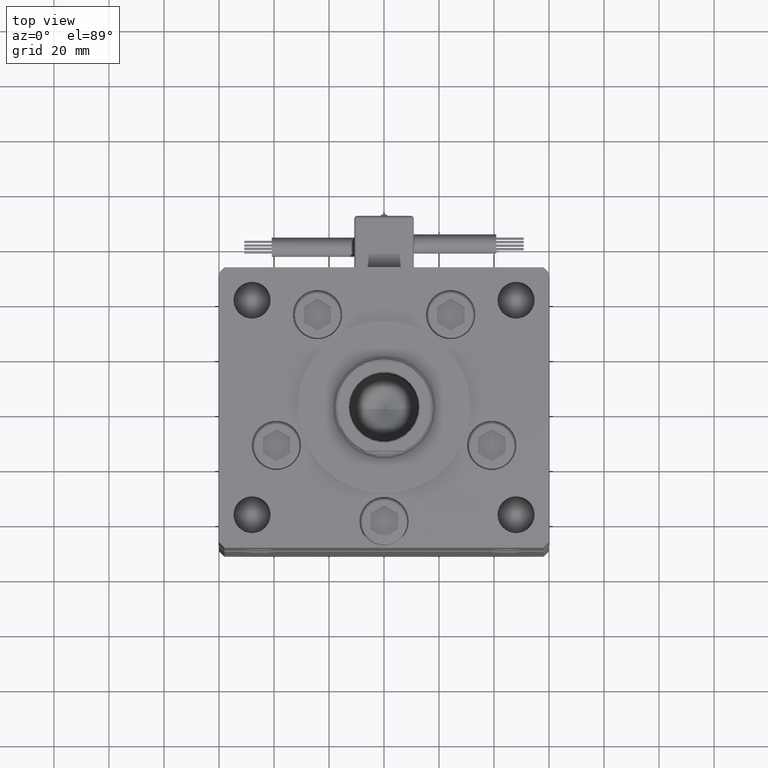
[diagram: clean part render]
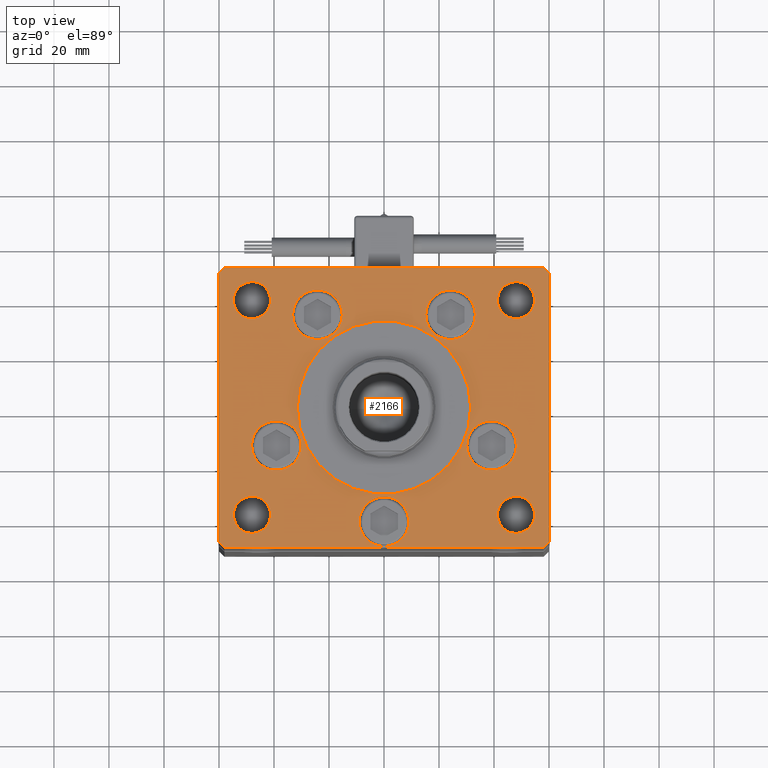
[diagram: same view with one face highlighted and labeled with its STEP entity id]
A machine part, top view. The second image highlights one B-rep face of the part: STEP entity #2166.
In plain terms, the highlighted planar face has unit normal (0, 0, 1).
Its self-contained STEP definition (entity closure, byte-faithful):
#380 = ORIENTED_EDGE ( 'NONE', *, *, #10781, .F. ) ;
#771 = DIRECTION ( 'NONE',  ( 1.000000000000000000, 0.000000000000000000, 0.000000000000000000 ) ) ;
#999 = CARTESIAN_POINT ( 'NONE',  ( 60.00000000000001421, 49.00000000000002842, 0.000000000000000000 ) ) ;
#1117 = EDGE_CURVE ( 'NONE', #8129, #43967, #13615, .T. ) ;
#1232 = CARTESIAN_POINT ( 'NONE',  ( 0.000000000000000000, 0.000000000000000000, 0.000000000000000000 ) ) ;
#1372 = LINE ( 'NONE', #15332, #27720 ) ;
#1507 = FACE_BOUND ( 'NONE', #9534, .T. ) ;
#1726 = DIRECTION ( 'NONE',  ( 0.000000000000000000, -1.000000000000000000, 0.000000000000000000 ) ) ;
#1865 = CARTESIAN_POINT ( 'NONE',  ( -48.00000000000000000, -39.00000000000001421, 0.000000000000000000 ) ) ;
#1868 = ORIENTED_EDGE ( 'NONE', *, *, #14160, .F. ) ;
#2023 = EDGE_CURVE ( 'NONE', #27829, #37886, #40986, .T. ) ;
#2048 = CIRCLE ( 'NONE', #9320, 31.50000000000000000 ) ;
#2114 = CARTESIAN_POINT ( 'NONE',  ( -58.00000000000000711, -51.00000000000002842, 0.000000000000000000 ) ) ;
#2166 = ADVANCED_FACE ( 'NONE', ( #15467, #32877, #14332, #2364, #10909, #1507, #23475, #22912, #23754, #11191, #28610 ), #32592, .T. ) ;
#2178 = CARTESIAN_POINT ( 'NONE',  ( 48.00000000000000000, 39.00000000000000000, 0.000000000000000000 ) ) ;
#2188 = CARTESIAN_POINT ( 'NONE',  ( 9.000000000000000000, -41.50000000000000000, 0.000000000000000000 ) ) ;
#2364 = FACE_BOUND ( 'NONE', #47450, .T. ) ;
#2489 = DIRECTION ( 'NONE',  ( 0.000000000000000000, 0.000000000000000000, 1.000000000000000000 ) ) ;
#2568 = VERTEX_POINT ( 'NONE', #10145 ) ;
#2948 = EDGE_CURVE ( 'NONE', #54557, #39420, #15516, .T. ) ;
#3286 = DIRECTION ( 'NONE',  ( -0.000000000000000000, -0.000000000000000000, -1.000000000000000000 ) ) ;
#4009 = ORIENTED_EDGE ( 'NONE', *, *, #32674, .F. ) ;
#4519 = DIRECTION ( 'NONE',  ( 0.000000000000000000, 0.000000000000000000, 1.000000000000000000 ) ) ;
#4549 = ORIENTED_EDGE ( 'NONE', *, *, #11022, .T. ) ;
#4842 = CARTESIAN_POINT ( 'NONE',  ( 48.00000000000000000, 39.00000000000000000, 0.000000000000000000 ) ) ;
#5028 = DIRECTION ( 'NONE',  ( 1.000000000000000000, 0.000000000000000000, 0.000000000000000000 ) ) ;
#5210 = VERTEX_POINT ( 'NONE', #27964 ) ;
#5228 = EDGE_CURVE ( 'NONE', #2568, #5210, #23404, .T. ) ;
#5799 = VECTOR ( 'NONE', #9552, 1000.000000000000000 ) ;
#6368 = ORIENTED_EDGE ( 'NONE', *, *, #13982, .F. ) ;
#6607 = AXIS2_PLACEMENT_3D ( 'NONE', #18485, #35583, #23046 ) ;
#6787 = DIRECTION ( 'NONE',  ( 1.000000000000000000, 0.000000000000000000, 0.000000000000000000 ) ) ;
#6920 = DIRECTION ( 'NONE',  ( 0.000000000000000000, 1.000000000000000000, 0.000000000000000000 ) ) ;
#7403 = ORIENTED_EDGE ( 'NONE', *, *, #28221, .F. ) ;
#7424 = VERTEX_POINT ( 'NONE', #38709 ) ;
#7764 = CARTESIAN_POINT ( 'NONE',  ( -9.000000000000000000, -41.50000000000000000, 0.000000000000000000 ) ) ;
#7800 = CARTESIAN_POINT ( 'NONE',  ( 31.50000000000000000, -3.081256486593065689E-15, 0.000000000000000000 ) ) ;
#8129 = VERTEX_POINT ( 'NONE', #31784 ) ;
#8155 = CARTESIAN_POINT ( 'NONE',  ( 39.12657522565563539, -13.83333333333332860, 0.000000000000000000 ) ) ;
#8533 = EDGE_CURVE ( 'NONE', #51269, #43485, #30513, .T. ) ;
#8646 = EDGE_LOOP ( 'NONE', ( #52662, #32396, #10801, #17482, #4549, #18138, #49569, #12942 ) ) ;
#8982 = EDGE_CURVE ( 'NONE', #32007, #54642, #2048, .T. ) ;
#9076 = CARTESIAN_POINT ( 'NONE',  ( 41.25000000000000000, 39.00000000000000000, 0.000000000000000000 ) ) ;
#9320 = AXIS2_PLACEMENT_3D ( 'NONE', #39828, #36613, #771 ) ;
#9534 = EDGE_LOOP ( 'NONE', ( #7403, #54099 ) ) ;
#9552 = DIRECTION ( 'NONE',  ( -0.7071067811865536790, 0.7071067811865414665, 0.000000000000000000 ) ) ;
#9639 = DIRECTION ( 'NONE',  ( 1.000000000000000000, 0.000000000000000000, 0.000000000000000000 ) ) ;
#10145 = CARTESIAN_POINT ( 'NONE',  ( -60.00000000000000000, 49.00000000000000000, 0.000000000000000000 ) ) ;
#10351 = AXIS2_PLACEMENT_3D ( 'NONE', #24157, #2489, #12149 ) ;
#10715 = VERTEX_POINT ( 'NONE', #11030 ) ;
#10781 = EDGE_CURVE ( 'NONE', #54642, #32007, #34928, .T. ) ;
#10801 = ORIENTED_EDGE ( 'NONE', *, *, #8533, .T. ) ;
#10815 = CIRCLE ( 'NONE', #56313, 6.749999999999999112 ) ;
#10893 = CARTESIAN_POINT ( 'NONE',  ( -48.00000000000000000, 39.00000000000000711, 0.000000000000000000 ) ) ;
#10909 = FACE_BOUND ( 'NONE', #48776, .T. ) ;
#11015 = CARTESIAN_POINT ( 'NONE',  ( 54.75000000000000000, 39.00000000000000000, 0.000000000000000000 ) ) ;
#11022 = EDGE_CURVE ( 'NONE', #19050, #37026, #18966, .T. ) ;
#11030 = CARTESIAN_POINT ( 'NONE',  ( -57.99999999999998579, 50.99999999999997868, 0.000000000000000000 ) ) ;
#11191 = FACE_OUTER_BOUND ( 'NONE', #8646, .T. ) ;
#11289 = DIRECTION ( 'NONE',  ( 0.000000000000000000, 0.000000000000000000, 1.000000000000000000 ) ) ;
#11837 = CARTESIAN_POINT ( 'NONE',  ( -48.00000000000000000, 39.00000000000000711, 0.000000000000000000 ) ) ;
#11932 = DIRECTION ( 'NONE',  ( 0.000000000000000000, 0.000000000000000000, 1.000000000000000000 ) ) ;
#12037 = VECTOR ( 'NONE', #6920, 1000.000000000000000 ) ;
#12149 = DIRECTION ( 'NONE',  ( 1.000000000000000000, 0.000000000000000000, 0.000000000000000000 ) ) ;
#12504 = EDGE_CURVE ( 'NONE', #21456, #50301, #38594, .T. ) ;
#12674 = VERTEX_POINT ( 'NONE', #42060 ) ;
#12942 = ORIENTED_EDGE ( 'NONE', *, *, #5228, .T. ) ;
#13615 = CIRCLE ( 'NONE', #20941, 9.000000000000001776 ) ;
#13982 = EDGE_CURVE ( 'NONE', #7424, #17263, #31227, .T. ) ;
#14018 = AXIS2_PLACEMENT_3D ( 'NONE', #15280, #46067, #50331 ) ;
#14160 = EDGE_CURVE ( 'NONE', #43967, #8129, #45820, .T. ) ;
#14252 = CIRCLE ( 'NONE', #42493, 9.000000000000000000 ) ;
#14332 = FACE_BOUND ( 'NONE', #32937, .T. ) ;
#14517 = CARTESIAN_POINT ( 'NONE',  ( -54.75000000000000000, 39.00000000000000711, 0.000000000000000000 ) ) ;
#15280 = CARTESIAN_POINT ( 'NONE',  ( 0.000000000000000000, -41.50000000000000000, 0.000000000000000000 ) ) ;
#15332 = CARTESIAN_POINT ( 'NONE',  ( 58.00000000000000000, 51.00000000000000711, 0.000000000000000000 ) ) ;
#15467 = FACE_BOUND ( 'NONE', #42854, .T. ) ;
#15516 = CIRCLE ( 'NONE', #47366, 6.749999999999999112 ) ;
#15766 = ORIENTED_EDGE ( 'NONE', *, *, #1117, .F. ) ;
#16415 = DIRECTION ( 'NONE',  ( 1.000000000000000000, 0.000000000000000000, 0.000000000000000000 ) ) ;
#16881 = AXIS2_PLACEMENT_3D ( 'NONE', #36648, #32389, #54319 ) ;
#17225 = EDGE_CURVE ( 'NONE', #39420, #54557, #41350, .T. ) ;
#17263 = VERTEX_POINT ( 'NONE', #25690 ) ;
#17330 = AXIS2_PLACEMENT_3D ( 'NONE', #1865, #19256, #49747 ) ;
#17335 = ORIENTED_EDGE ( 'NONE', *, *, #38188, .F. ) ;
#17482 = ORIENTED_EDGE ( 'NONE', *, *, #37767, .T. ) ;
#17731 = VECTOR ( 'NONE', #37299, 1000.000000000000114 ) ;
#18138 = ORIENTED_EDGE ( 'NONE', *, *, #46810, .T. ) ;
#18485 = CARTESIAN_POINT ( 'NONE',  ( 0.000000000000000000, -41.50000000000000000, 0.000000000000000000 ) ) ;
#18629 = DIRECTION ( 'NONE',  ( 1.000000000000000000, 0.000000000000000000, 0.000000000000000000 ) ) ;
#18911 = DIRECTION ( 'NONE',  ( -0.000000000000000000, 0.000000000000000000, 1.000000000000000000 ) ) ;
#18966 = LINE ( 'NONE', #999, #5799 ) ;
#19050 = VERTEX_POINT ( 'NONE', #19307 ) ;
#19107 = VERTEX_POINT ( 'NONE', #33005 ) ;
#19256 = DIRECTION ( 'NONE',  ( 0.000000000000000000, 0.000000000000000000, 1.000000000000000000 ) ) ;
#19307 = CARTESIAN_POINT ( 'NONE',  ( 60.00000000000001421, 49.00000000000002842, 0.000000000000000000 ) ) ;
#19614 = DIRECTION ( 'NONE',  ( -1.000000000000000000, -2.392722035830078972E-16, 0.000000000000000000 ) ) ;
#19743 = AXIS2_PLACEMENT_3D ( 'NONE', #28466, #45827, #6787 ) ;
#19849 = VERTEX_POINT ( 'NONE', #9076 ) ;
#20029 = DIRECTION ( 'NONE',  ( -1.000000000000000000, 0.000000000000000000, 0.000000000000000000 ) ) ;
#20410 = CIRCLE ( 'NONE', #14018, 9.000000000000000000 ) ;
#20518 = CARTESIAN_POINT ( 'NONE',  ( -31.50000000000000000, -6.938893903907228378E-15, 0.000000000000000000 ) ) ;
#20873 = EDGE_CURVE ( 'NONE', #56268, #35382, #25118, .T. ) ;
#20941 = AXIS2_PLACEMENT_3D ( 'NONE', #38088, #55482, #16415 ) ;
#21238 = CARTESIAN_POINT ( 'NONE',  ( -41.25000000000000000, 39.00000000000000711, 0.000000000000000000 ) ) ;
#21396 = CARTESIAN_POINT ( 'NONE',  ( 54.75000000000000000, -39.00000000000001421, 0.000000000000000000 ) ) ;
#21456 = VERTEX_POINT ( 'NONE', #7764 ) ;
#22262 = CARTESIAN_POINT ( 'NONE',  ( -54.75000000000000000, -39.00000000000001421, 0.000000000000000000 ) ) ;
#22585 = EDGE_CURVE ( 'NONE', #12674, #19107, #55230, .T. ) ;
#22734 = LINE ( 'NONE', #39831, #24755 ) ;
#22887 = VECTOR ( 'NONE', #1726, 1000.000000000000000 ) ;
#22912 = FACE_BOUND ( 'NONE', #41099, .T. ) ;
#23046 = DIRECTION ( 'NONE',  ( 1.000000000000000000, 0.000000000000000000, 0.000000000000000000 ) ) ;
#23404 = LINE ( 'NONE', #40782, #22887 ) ;
#23475 = FACE_BOUND ( 'NONE', #33754, .T. ) ;
#23754 = FACE_BOUND ( 'NONE', #53857, .T. ) ;
#23907 = CARTESIAN_POINT ( 'NONE',  ( -60.00000000000000000, -49.00000000000004263, 0.000000000000000000 ) ) ;
#23988 = AXIS2_PLACEMENT_3D ( 'NONE', #29231, #47137, #54858 ) ;
#24099 = CIRCLE ( 'NONE', #30476, 9.000000000000001776 ) ;
#24157 = CARTESIAN_POINT ( 'NONE',  ( 0.000000000000000000, -6.938893903907228378E-15, 0.000000000000000000 ) ) ;
#24249 = CARTESIAN_POINT ( 'NONE',  ( 58.00000000000001421, -50.99999999999992184, 0.000000000000000000 ) ) ;
#24755 = VECTOR ( 'NONE', #48098, 1000.000000000000000 ) ;
#25118 = CIRCLE ( 'NONE', #16881, 6.749999999999999112 ) ;
#25384 = DIRECTION ( 'NONE',  ( 0.000000000000000000, 0.000000000000000000, 1.000000000000000000 ) ) ;
#25690 = CARTESIAN_POINT ( 'NONE',  ( 30.12657522565563539, -13.83333333333332682, 0.000000000000000000 ) ) ;
#25897 = DIRECTION ( 'NONE',  ( -1.000000000000000000, 0.000000000000000000, 0.000000000000000000 ) ) ;
#26079 = ORIENTED_EDGE ( 'NONE', *, *, #34396, .F. ) ;
#26144 = DIRECTION ( 'NONE',  ( 0.000000000000000000, 0.000000000000000000, 1.000000000000000000 ) ) ;
#26453 = DIRECTION ( 'NONE',  ( -0.000000000000000000, -0.000000000000000000, -1.000000000000000000 ) ) ;
#26515 = ORIENTED_EDGE ( 'NONE', *, *, #17225, .T. ) ;
#27139 = EDGE_CURVE ( 'NONE', #19107, #12674, #14252, .T. ) ;
#27720 = VECTOR ( 'NONE', #19614, 1000.000000000000000 ) ;
#27829 = VERTEX_POINT ( 'NONE', #49895 ) ;
#27964 = CARTESIAN_POINT ( 'NONE',  ( -60.00000000000000000, -49.00000000000004263, 0.000000000000000000 ) ) ;
#28221 = EDGE_CURVE ( 'NONE', #44039, #37463, #44308, .T. ) ;
#28317 = CARTESIAN_POINT ( 'NONE',  ( 60.00000000000001421, -48.99999999999992895, 0.000000000000000000 ) ) ;
#28466 = CARTESIAN_POINT ( 'NONE',  ( -39.12657522565563539, -13.83333333333332860, 0.000000000000000000 ) ) ;
#28610 = FACE_BOUND ( 'NONE', #51339, .T. ) ;
#29231 = CARTESIAN_POINT ( 'NONE',  ( 24.19288941894913592, 33.71874999999998579, 0.000000000000000000 ) ) ;
#29906 = CARTESIAN_POINT ( 'NONE',  ( -48.00000000000000000, -39.00000000000001421, 0.000000000000000000 ) ) ;
#29971 = CARTESIAN_POINT ( 'NONE',  ( 58.00000000000001421, -50.99999999999992184, 0.000000000000000000 ) ) ;
#30476 = AXIS2_PLACEMENT_3D ( 'NONE', #51788, #26144, #5028 ) ;
#30513 = LINE ( 'NONE', #29971, #52975 ) ;
#31227 = CIRCLE ( 'NONE', #38502, 9.000000000000001776 ) ;
#31430 = CARTESIAN_POINT ( 'NONE',  ( -57.99999999999998579, 50.99999999999997868, 0.000000000000000000 ) ) ;
#31784 = CARTESIAN_POINT ( 'NONE',  ( 15.19288941894913236, 33.71874999999998579, 0.000000000000000000 ) ) ;
#32007 = VERTEX_POINT ( 'NONE', #7800 ) ;
#32288 = ORIENTED_EDGE ( 'NONE', *, *, #27139, .F. ) ;
#32363 = ORIENTED_EDGE ( 'NONE', *, *, #8982, .F. ) ;
#32389 = DIRECTION ( 'NONE',  ( -0.000000000000000000, -0.000000000000000000, -1.000000000000000000 ) ) ;
#32396 = ORIENTED_EDGE ( 'NONE', *, *, #35881, .T. ) ;
#32592 = PLANE ( 'NONE',  #32835 ) ;
#32674 = EDGE_CURVE ( 'NONE', #19849, #35984, #10815, .T. ) ;
#32822 = ORIENTED_EDGE ( 'NONE', *, *, #22585, .F. ) ;
#32835 = AXIS2_PLACEMENT_3D ( 'NONE', #1232, #18911, #18629 ) ;
#32877 = FACE_BOUND ( 'NONE', #46288, .T. ) ;
#32937 = EDGE_LOOP ( 'NONE', ( #1868, #15766 ) ) ;
#33001 = EDGE_CURVE ( 'NONE', #10715, #2568, #39972, .T. ) ;
#33005 = CARTESIAN_POINT ( 'NONE',  ( -33.19288941894913592, 33.71874999999998579, 0.000000000000000000 ) ) ;
#33515 = CARTESIAN_POINT ( 'NONE',  ( 41.25000000000000000, -39.00000000000001421, 0.000000000000000000 ) ) ;
#33717 = ORIENTED_EDGE ( 'NONE', *, *, #2023, .F. ) ;
#33754 = EDGE_LOOP ( 'NONE', ( #26515, #41308 ) ) ;
#33798 = DIRECTION ( 'NONE',  ( -1.000000000000000000, 0.000000000000000000, 0.000000000000000000 ) ) ;
#34380 = CIRCLE ( 'NONE', #43444, 6.749999999999999112 ) ;
#34396 = EDGE_CURVE ( 'NONE', #37886, #27829, #49117, .T. ) ;
#34928 = CIRCLE ( 'NONE', #10351, 31.50000000000000000 ) ;
#35382 = VERTEX_POINT ( 'NONE', #21396 ) ;
#35583 = DIRECTION ( 'NONE',  ( 0.000000000000000000, 0.000000000000000000, 1.000000000000000000 ) ) ;
#35881 = EDGE_CURVE ( 'NONE', #49205, #51269, #22734, .T. ) ;
#35984 = VERTEX_POINT ( 'NONE', #11015 ) ;
#36613 = DIRECTION ( 'NONE',  ( 0.000000000000000000, 0.000000000000000000, 1.000000000000000000 ) ) ;
#36625 = CIRCLE ( 'NONE', #51185, 9.000000000000001776 ) ;
#36648 = CARTESIAN_POINT ( 'NONE',  ( 48.00000000000000000, -39.00000000000001421, 0.000000000000000000 ) ) ;
#37010 = LINE ( 'NONE', #23907, #17731 ) ;
#37026 = VERTEX_POINT ( 'NONE', #40904 ) ;
#37299 = DIRECTION ( 'NONE',  ( 0.7071067811865474617, -0.7071067811865474617, 0.000000000000000000 ) ) ;
#37330 = ORIENTED_EDGE ( 'NONE', *, *, #45397, .F. ) ;
#37463 = VERTEX_POINT ( 'NONE', #47348 ) ;
#37767 = EDGE_CURVE ( 'NONE', #43485, #19050, #45968, .T. ) ;
#37798 = CARTESIAN_POINT ( 'NONE',  ( -30.12657522565563539, -13.83333333333332860, 0.000000000000000000 ) ) ;
#37886 = VERTEX_POINT ( 'NONE', #22262 ) ;
#37935 = DIRECTION ( 'NONE',  ( 1.000000000000000000, 0.000000000000000000, 0.000000000000000000 ) ) ;
#38088 = CARTESIAN_POINT ( 'NONE',  ( 24.19288941894913592, 33.71874999999998579, 0.000000000000000000 ) ) ;
#38166 = DIRECTION ( 'NONE',  ( 1.000000000000000000, 0.000000000000000000, 0.000000000000000000 ) ) ;
#38188 = EDGE_CURVE ( 'NONE', #17263, #7424, #36625, .T. ) ;
#38502 = AXIS2_PLACEMENT_3D ( 'NONE', #8155, #55492, #42376 ) ;
#38594 = CIRCLE ( 'NONE', #6607, 9.000000000000000000 ) ;
#38709 = CARTESIAN_POINT ( 'NONE',  ( 48.12657522565563539, -13.83333333333332860, 0.000000000000000000 ) ) ;
#39420 = VERTEX_POINT ( 'NONE', #21238 ) ;
#39828 = CARTESIAN_POINT ( 'NONE',  ( 0.000000000000000000, -6.938893903907228378E-15, 0.000000000000000000 ) ) ;
#39831 = CARTESIAN_POINT ( 'NONE',  ( -58.00000000000000711, -51.00000000000002842, 0.000000000000000000 ) ) ;
#39972 = LINE ( 'NONE', #31430, #48117 ) ;
#40153 = CARTESIAN_POINT ( 'NONE',  ( 60.00000000000001421, -48.99999999999992895, 0.000000000000000000 ) ) ;
#40360 = CIRCLE ( 'NONE', #54940, 6.749999999999999112 ) ;
#40654 = ORIENTED_EDGE ( 'NONE', *, *, #12504, .F. ) ;
#40678 = ORIENTED_EDGE ( 'NONE', *, *, #20873, .T. ) ;
#40782 = CARTESIAN_POINT ( 'NONE',  ( -60.00000000000000000, 49.00000000000000000, 0.000000000000000000 ) ) ;
#40904 = CARTESIAN_POINT ( 'NONE',  ( 58.00000000000000000, 51.00000000000000711, 0.000000000000000000 ) ) ;
#40986 = CIRCLE ( 'NONE', #17330, 6.749999999999999112 ) ;
#41099 = EDGE_LOOP ( 'NONE', ( #37330, #4009 ) ) ;
#41308 = ORIENTED_EDGE ( 'NONE', *, *, #2948, .T. ) ;
#41350 = CIRCLE ( 'NONE', #53184, 6.749999999999999112 ) ;
#41620 = EDGE_CURVE ( 'NONE', #50301, #21456, #20410, .T. ) ;
#42060 = CARTESIAN_POINT ( 'NONE',  ( -15.19288941894913592, 33.71874999999998579, 0.000000000000000000 ) ) ;
#42085 = DIRECTION ( 'NONE',  ( 1.000000000000000000, 0.000000000000000000, 0.000000000000000000 ) ) ;
#42376 = DIRECTION ( 'NONE',  ( 1.000000000000000000, 0.000000000000000000, 0.000000000000000000 ) ) ;
#42493 = AXIS2_PLACEMENT_3D ( 'NONE', #54310, #44921, #45755 ) ;
#42854 = EDGE_LOOP ( 'NONE', ( #380, #32363 ) ) ;
#43367 = AXIS2_PLACEMENT_3D ( 'NONE', #51308, #25384, #37935 ) ;
#43444 = AXIS2_PLACEMENT_3D ( 'NONE', #47822, #26453, #25897 ) ;
#43485 = VERTEX_POINT ( 'NONE', #40153 ) ;
#43967 = VERTEX_POINT ( 'NONE', #47176 ) ;
#44039 = VERTEX_POINT ( 'NONE', #37798 ) ;
#44308 = CIRCLE ( 'NONE', #19743, 9.000000000000001776 ) ;
#44921 = DIRECTION ( 'NONE',  ( 0.000000000000000000, 0.000000000000000000, 1.000000000000000000 ) ) ;
#45397 = EDGE_CURVE ( 'NONE', #35984, #19849, #40360, .T. ) ;
#45671 = DIRECTION ( 'NONE',  ( -0.000000000000000000, -0.000000000000000000, -1.000000000000000000 ) ) ;
#45755 = DIRECTION ( 'NONE',  ( 1.000000000000000000, 0.000000000000000000, 0.000000000000000000 ) ) ;
#45820 = CIRCLE ( 'NONE', #23988, 9.000000000000001776 ) ;
#45827 = DIRECTION ( 'NONE',  ( 0.000000000000000000, 0.000000000000000000, 1.000000000000000000 ) ) ;
#45968 = LINE ( 'NONE', #28317, #12037 ) ;
#46067 = DIRECTION ( 'NONE',  ( 0.000000000000000000, 0.000000000000000000, 1.000000000000000000 ) ) ;
#46288 = EDGE_LOOP ( 'NONE', ( #32822, #32288 ) ) ;
#46810 = EDGE_CURVE ( 'NONE', #37026, #10715, #1372, .T. ) ;
#46879 = ORIENTED_EDGE ( 'NONE', *, *, #54794, .T. ) ;
#47137 = DIRECTION ( 'NONE',  ( 0.000000000000000000, 0.000000000000000000, 1.000000000000000000 ) ) ;
#47176 = CARTESIAN_POINT ( 'NONE',  ( 33.19288941894913592, 33.71874999999998579, 0.000000000000000000 ) ) ;
#47348 = CARTESIAN_POINT ( 'NONE',  ( -48.12657522565563539, -13.83333333333332682, 0.000000000000000000 ) ) ;
#47366 = AXIS2_PLACEMENT_3D ( 'NONE', #11837, #3286, #33798 ) ;
#47450 = EDGE_LOOP ( 'NONE', ( #6368, #17335 ) ) ;
#47635 = EDGE_CURVE ( 'NONE', #5210, #49205, #37010, .T. ) ;
#47776 = DIRECTION ( 'NONE',  ( 0.000000000000000000, 0.000000000000000000, 1.000000000000000000 ) ) ;
#47822 = CARTESIAN_POINT ( 'NONE',  ( 48.00000000000000000, -39.00000000000001421, 0.000000000000000000 ) ) ;
#47837 = EDGE_CURVE ( 'NONE', #37463, #44039, #24099, .T. ) ;
#47840 = CARTESIAN_POINT ( 'NONE',  ( 39.12657522565563539, -13.83333333333332860, 0.000000000000000000 ) ) ;
#47979 = ORIENTED_EDGE ( 'NONE', *, *, #41620, .F. ) ;
#48098 = DIRECTION ( 'NONE',  ( 1.000000000000000000, 9.570888143320313916E-16, 0.000000000000000000 ) ) ;
#48117 = VECTOR ( 'NONE', #48798, 1000.000000000000000 ) ;
#48776 = EDGE_LOOP ( 'NONE', ( #47979, #40654 ) ) ;
#48798 = DIRECTION ( 'NONE',  ( -0.7071067811865536790, -0.7071067811865414665, 0.000000000000000000 ) ) ;
#49117 = CIRCLE ( 'NONE', #53667, 6.749999999999999112 ) ;
#49205 = VERTEX_POINT ( 'NONE', #2114 ) ;
#49569 = ORIENTED_EDGE ( 'NONE', *, *, #33001, .T. ) ;
#49747 = DIRECTION ( 'NONE',  ( 1.000000000000000000, 0.000000000000000000, 0.000000000000000000 ) ) ;
#49895 = CARTESIAN_POINT ( 'NONE',  ( -41.25000000000000000, -39.00000000000001421, 0.000000000000000000 ) ) ;
#50301 = VERTEX_POINT ( 'NONE', #2188 ) ;
#50331 = DIRECTION ( 'NONE',  ( 1.000000000000000000, 0.000000000000000000, 0.000000000000000000 ) ) ;
#51185 = AXIS2_PLACEMENT_3D ( 'NONE', #47840, #4519, #9639 ) ;
#51269 = VERTEX_POINT ( 'NONE', #24249 ) ;
#51308 = CARTESIAN_POINT ( 'NONE',  ( -24.19288941894913592, 33.71874999999998579, 0.000000000000000000 ) ) ;
#51339 = EDGE_LOOP ( 'NONE', ( #46879, #40678 ) ) ;
#51495 = DIRECTION ( 'NONE',  ( 1.000000000000000000, 0.000000000000000000, 0.000000000000000000 ) ) ;
#51788 = CARTESIAN_POINT ( 'NONE',  ( -39.12657522565563539, -13.83333333333332860, 0.000000000000000000 ) ) ;
#51870 = DIRECTION ( 'NONE',  ( 0.7071067811865474617, 0.7071067811865474617, 0.000000000000000000 ) ) ;
#52662 = ORIENTED_EDGE ( 'NONE', *, *, #47635, .T. ) ;
#52975 = VECTOR ( 'NONE', #51870, 1000.000000000000114 ) ;
#53184 = AXIS2_PLACEMENT_3D ( 'NONE', #10893, #45671, #20029 ) ;
#53667 = AXIS2_PLACEMENT_3D ( 'NONE', #29906, #11932, #38166 ) ;
#53857 = EDGE_LOOP ( 'NONE', ( #33717, #26079 ) ) ;
#54099 = ORIENTED_EDGE ( 'NONE', *, *, #47837, .F. ) ;
#54310 = CARTESIAN_POINT ( 'NONE',  ( -24.19288941894913592, 33.71874999999998579, 0.000000000000000000 ) ) ;
#54319 = DIRECTION ( 'NONE',  ( -1.000000000000000000, 0.000000000000000000, 0.000000000000000000 ) ) ;
#54557 = VERTEX_POINT ( 'NONE', #14517 ) ;
#54642 = VERTEX_POINT ( 'NONE', #20518 ) ;
#54794 = EDGE_CURVE ( 'NONE', #35382, #56268, #34380, .T. ) ;
#54858 = DIRECTION ( 'NONE',  ( 1.000000000000000000, 0.000000000000000000, 0.000000000000000000 ) ) ;
#54940 = AXIS2_PLACEMENT_3D ( 'NONE', #4842, #47776, #51495 ) ;
#55230 = CIRCLE ( 'NONE', #43367, 9.000000000000000000 ) ;
#55482 = DIRECTION ( 'NONE',  ( 0.000000000000000000, 0.000000000000000000, 1.000000000000000000 ) ) ;
#55492 = DIRECTION ( 'NONE',  ( 0.000000000000000000, 0.000000000000000000, 1.000000000000000000 ) ) ;
#56268 = VERTEX_POINT ( 'NONE', #33515 ) ;
#56313 = AXIS2_PLACEMENT_3D ( 'NONE', #2178, #11289, #42085 ) ;